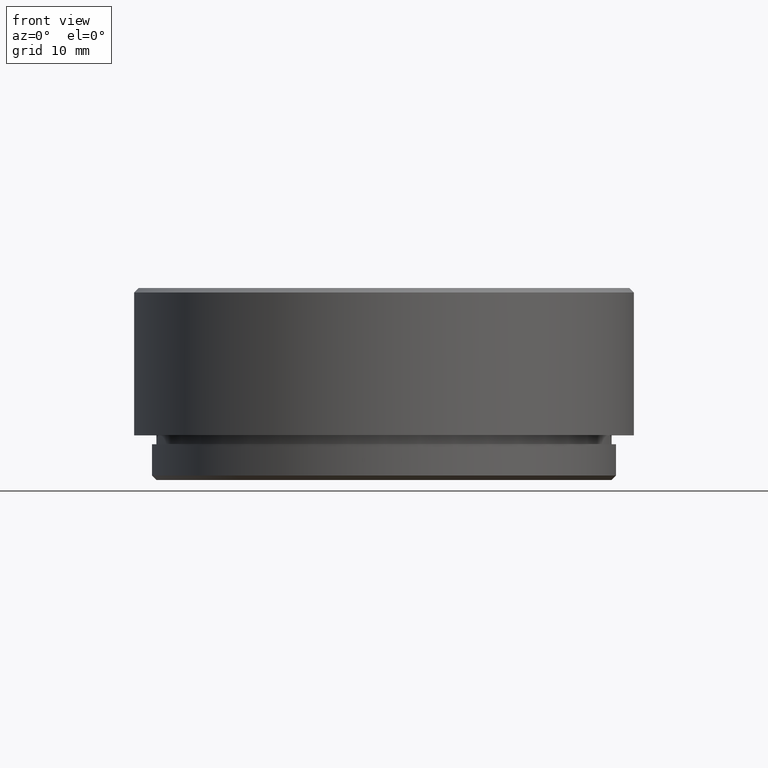
[diagram: clean part render]
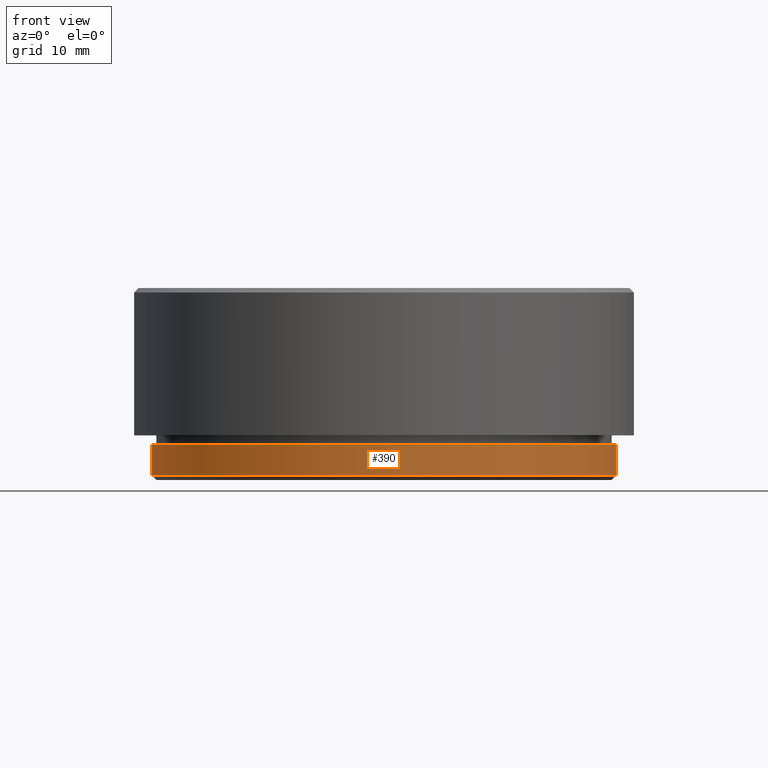
[diagram: same view with one face highlighted and labeled with its STEP entity id]
A machine part, front view. The second image highlights one B-rep face of the part: STEP entity #390.
In plain terms, the highlighted cylindrical surface (partial cylindrical patch) has radius 26 mm, axis along (-0, -0, -1).
Its self-contained STEP definition (entity closure, byte-faithful):
#48 = DIRECTION ( 'NONE',  ( -1.000000000000000000, 0.000000000000000000, 0.000000000000000000 ) ) ;
#87 = DIRECTION ( 'NONE',  ( -0.000000000000000000, -0.000000000000000000, -1.000000000000000000 ) ) ;
#95 = LINE ( 'NONE', #498, #1472 ) ;
#100 = DIRECTION ( 'NONE',  ( -1.000000000000000000, 0.000000000000000000, 0.000000000000000000 ) ) ;
#149 = LINE ( 'NONE', #675, #1443 ) ;
#150 = VERTEX_POINT ( 'NONE', #1568 ) ;
#195 = CARTESIAN_POINT ( 'NONE',  ( 0.000000000000000000, 0.000000000000000000, 4.000000000000000000 ) ) ;
#201 = ORIENTED_EDGE ( 'NONE', *, *, #1569, .T. ) ;
#246 = ORIENTED_EDGE ( 'NONE', *, *, #275, .F. ) ;
#275 = EDGE_CURVE ( 'NONE', #517, #1674, #95, .T. ) ;
#357 = FACE_OUTER_BOUND ( 'NONE', #1647, .T. ) ;
#369 = CIRCLE ( 'NONE', #1375, 26.00000000000000355 ) ;
#390 = ADVANCED_FACE ( 'NONE', ( #357 ), #630, .T. ) ;
#434 = ORIENTED_EDGE ( 'NONE', *, *, #801, .T. ) ;
#498 = CARTESIAN_POINT ( 'NONE',  ( 26.00000000000000355, 3.184081677783118585E-15, 5.000000000000000000 ) ) ;
#517 = VERTEX_POINT ( 'NONE', #1524 ) ;
#556 = CARTESIAN_POINT ( 'NONE',  ( 0.000000000000000000, 0.000000000000000000, 0.5000000000000247580 ) ) ;
#630 = CYLINDRICAL_SURFACE ( 'NONE', #1147, 26.00000000000000355 ) ;
#675 = CARTESIAN_POINT ( 'NONE',  ( -26.00000000000000355, 0.000000000000000000, 5.000000000000000000 ) ) ;
#735 = DIRECTION ( 'NONE',  ( 0.000000000000000000, 0.000000000000000000, -1.000000000000000000 ) ) ;
#740 = EDGE_CURVE ( 'NONE', #1008, #1674, #1350, .T. ) ;
#801 = EDGE_CURVE ( 'NONE', #517, #150, #369, .T. ) ;
#889 = CARTESIAN_POINT ( 'NONE',  ( -26.00000000000000355, 0.000000000000000000, 0.5000000000000247580 ) ) ;
#1003 = AXIS2_PLACEMENT_3D ( 'NONE', #556, #1063, #1101 ) ;
#1008 = VERTEX_POINT ( 'NONE', #889 ) ;
#1045 = DIRECTION ( 'NONE',  ( -0.000000000000000000, -0.000000000000000000, -1.000000000000000000 ) ) ;
#1063 = DIRECTION ( 'NONE',  ( 0.000000000000000000, 0.000000000000000000, 1.000000000000000000 ) ) ;
#1093 = DIRECTION ( 'NONE',  ( -0.000000000000000000, -0.000000000000000000, -1.000000000000000000 ) ) ;
#1101 = DIRECTION ( 'NONE',  ( 1.000000000000000000, 0.000000000000000000, 0.000000000000000000 ) ) ;
#1147 = AXIS2_PLACEMENT_3D ( 'NONE', #1168, #1045, #100 ) ;
#1168 = CARTESIAN_POINT ( 'NONE',  ( 0.000000000000000000, 0.000000000000000000, 5.000000000000000000 ) ) ;
#1218 = CARTESIAN_POINT ( 'NONE',  ( 26.00000000000000355, 3.184081677783118585E-15, 0.5000000000000247580 ) ) ;
#1350 = CIRCLE ( 'NONE', #1003, 26.00000000000000355 ) ;
#1375 = AXIS2_PLACEMENT_3D ( 'NONE', #195, #735, #48 ) ;
#1443 = VECTOR ( 'NONE', #1093, 1000.000000000000000 ) ;
#1472 = VECTOR ( 'NONE', #87, 1000.000000000000000 ) ;
#1524 = CARTESIAN_POINT ( 'NONE',  ( 26.00000000000000355, 3.184081677783118585E-15, 4.000000000000000000 ) ) ;
#1568 = CARTESIAN_POINT ( 'NONE',  ( -26.00000000000000355, 0.000000000000000000, 4.000000000000000000 ) ) ;
#1569 = EDGE_CURVE ( 'NONE', #150, #1008, #149, .T. ) ;
#1647 = EDGE_LOOP ( 'NONE', ( #246, #434, #201, #1693 ) ) ;
#1674 = VERTEX_POINT ( 'NONE', #1218 ) ;
#1693 = ORIENTED_EDGE ( 'NONE', *, *, #740, .T. ) ;